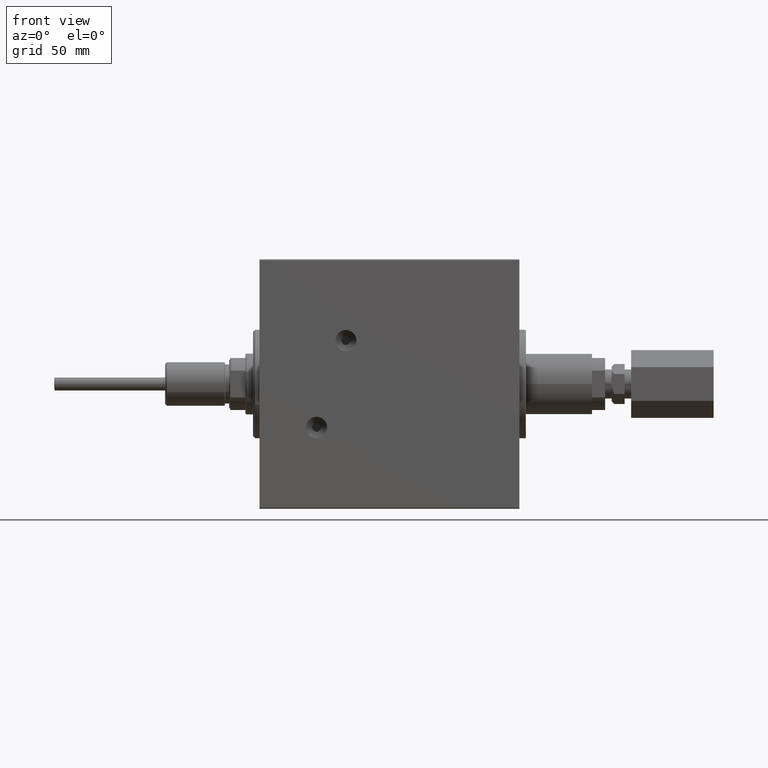
[diagram: clean part render]
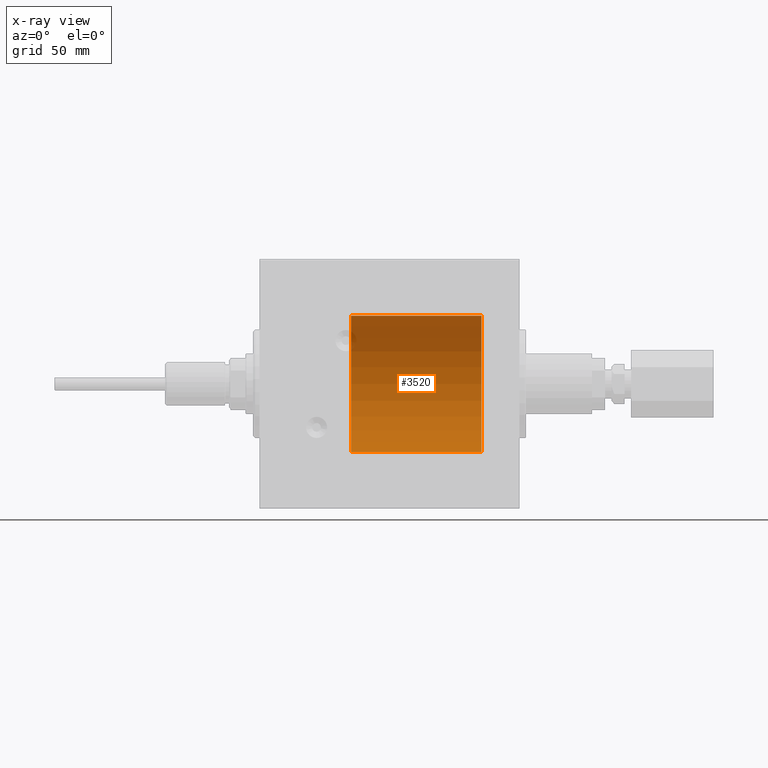
[diagram: x-ray — body ghosted, one internal face saturated and labeled with its STEP entity id]
A machine part, front view, then the same camera in x-ray: the body is ghosted and one INTERNAL B-rep face — a face not visible from any outside direction — is saturated and labeled: STEP entity #3520.
In plain terms, the highlighted cylindrical surface (partial cylindrical patch) has radius 31.5 mm, axis along (-1, -0, -0).
Its self-contained STEP definition (entity closure, byte-faithful):
#557 = CARTESIAN_POINT ( 'NONE',  ( 57.35000000000000853, 2.536281157016709642, -31.39772727272727693 ) ) ;
#570 = DIRECTION ( 'NONE',  ( 0.000000000000000000, 0.000000000000000000, 1.000000000000000000 ) ) ;
#979 = CARTESIAN_POINT ( 'NONE',  ( 102.2000000000000028, 0.000000000000000000, 0.000000000000000000 ) ) ;
#3520 = ADVANCED_FACE ( 'NONE', ( #19771 ), #5018, .F. ) ;
#3533 = CARTESIAN_POINT ( 'NONE',  ( 42.20000000000000284, 2.536281157016704313, -31.39772727272727337 ) ) ;
#3748 = CARTESIAN_POINT ( 'NONE',  ( 102.2000000000000028, 2.536281157016719412, 31.39772727272727337 ) ) ;
#5018 = CYLINDRICAL_SURFACE ( 'NONE', #27287, 31.50000000000000000 ) ;
#5081 = DIRECTION ( 'NONE',  ( -1.000000000000000000, 0.000000000000000000, 0.000000000000000000 ) ) ;
#5145 = EDGE_CURVE ( 'NONE', #25599, #28276, #20206, .T. ) ;
#7002 = CIRCLE ( 'NONE', #30583, 31.50000000000000000 ) ;
#8597 = VECTOR ( 'NONE', #33442, 1000.000000000000000 ) ;
#10840 = EDGE_LOOP ( 'NONE', ( #13511, #27772, #41211, #41557 ) ) ;
#12256 = EDGE_CURVE ( 'NONE', #25599, #26003, #40436, .T. ) ;
#13511 = ORIENTED_EDGE ( 'NONE', *, *, #12256, .F. ) ;
#13947 = CARTESIAN_POINT ( 'NONE',  ( 42.20000000000000284, 0.000000000000000000, 0.000000000000000000 ) ) ;
#14493 = EDGE_CURVE ( 'NONE', #28276, #38379, #7002, .T. ) ;
#17044 = DIRECTION ( 'NONE',  ( -1.000000000000000000, 0.000000000000000000, 0.000000000000000000 ) ) ;
#19605 = CARTESIAN_POINT ( 'NONE',  ( 102.2000000000000028, 2.536281157016704313, -31.39772727272727337 ) ) ;
#19771 = FACE_OUTER_BOUND ( 'NONE', #10840, .T. ) ;
#20206 = LINE ( 'NONE', #35227, #26468 ) ;
#20382 = EDGE_CURVE ( 'NONE', #38379, #26003, #32742, .T. ) ;
#24652 = DIRECTION ( 'NONE',  ( 0.000000000000000000, 0.000000000000000000, 1.000000000000000000 ) ) ;
#25599 = VERTEX_POINT ( 'NONE', #3748 ) ;
#26003 = VERTEX_POINT ( 'NONE', #19605 ) ;
#26468 = VECTOR ( 'NONE', #27353, 1000.000000000000000 ) ;
#27287 = AXIS2_PLACEMENT_3D ( 'NONE', #979, #36562, #36323 ) ;
#27353 = DIRECTION ( 'NONE',  ( -1.000000000000000000, 0.000000000000000000, 0.000000000000000000 ) ) ;
#27772 = ORIENTED_EDGE ( 'NONE', *, *, #5145, .T. ) ;
#28276 = VERTEX_POINT ( 'NONE', #30609 ) ;
#30583 = AXIS2_PLACEMENT_3D ( 'NONE', #13947, #17044, #24652 ) ;
#30609 = CARTESIAN_POINT ( 'NONE',  ( 42.20000000000000284, 2.536281157016708310, 31.39772727272727337 ) ) ;
#32742 = LINE ( 'NONE', #557, #8597 ) ;
#33442 = DIRECTION ( 'NONE',  ( 1.000000000000000000, -0.000000000000000000, -0.000000000000000000 ) ) ;
#33564 = AXIS2_PLACEMENT_3D ( 'NONE', #37729, #5081, #570 ) ;
#35227 = CARTESIAN_POINT ( 'NONE',  ( 57.35000000000000853, 2.536281157016708754, 31.39772727272727693 ) ) ;
#36323 = DIRECTION ( 'NONE',  ( 0.000000000000000000, 0.000000000000000000, 1.000000000000000000 ) ) ;
#36562 = DIRECTION ( 'NONE',  ( -1.000000000000000000, -0.000000000000000000, -0.000000000000000000 ) ) ;
#37729 = CARTESIAN_POINT ( 'NONE',  ( 102.2000000000000028, 0.000000000000000000, 0.000000000000000000 ) ) ;
#38379 = VERTEX_POINT ( 'NONE', #3533 ) ;
#40436 = CIRCLE ( 'NONE', #33564, 31.50000000000000000 ) ;
#41211 = ORIENTED_EDGE ( 'NONE', *, *, #14493, .T. ) ;
#41557 = ORIENTED_EDGE ( 'NONE', *, *, #20382, .T. ) ;